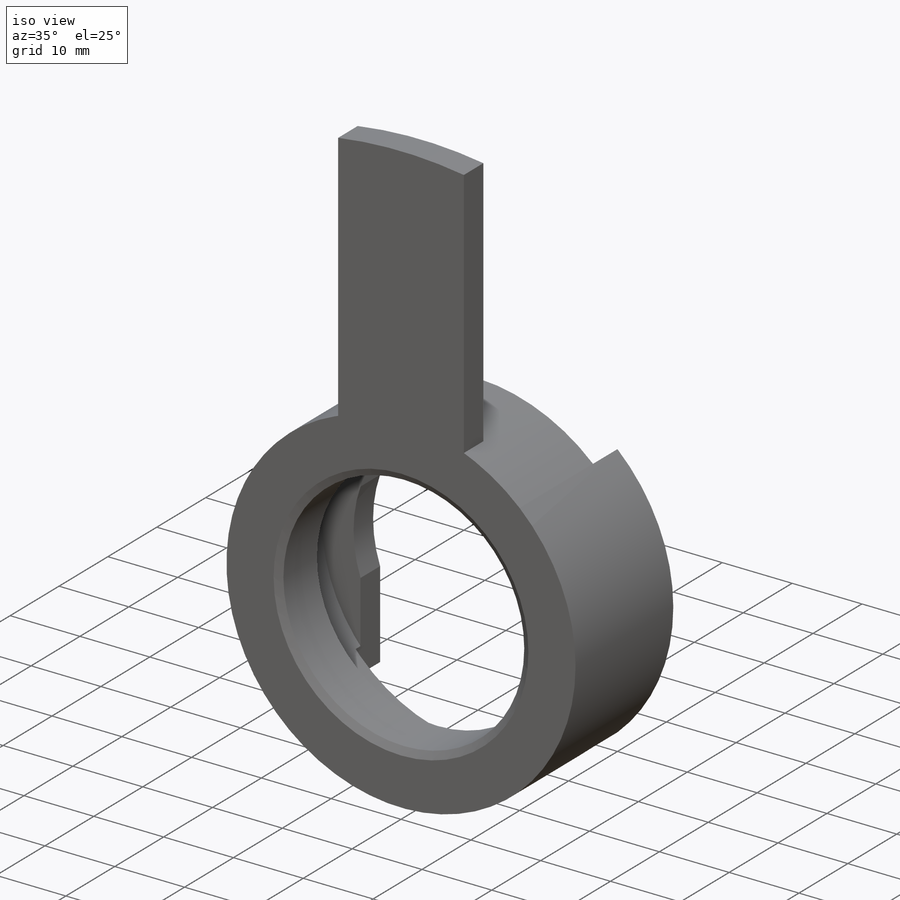
[diagram: iso view]
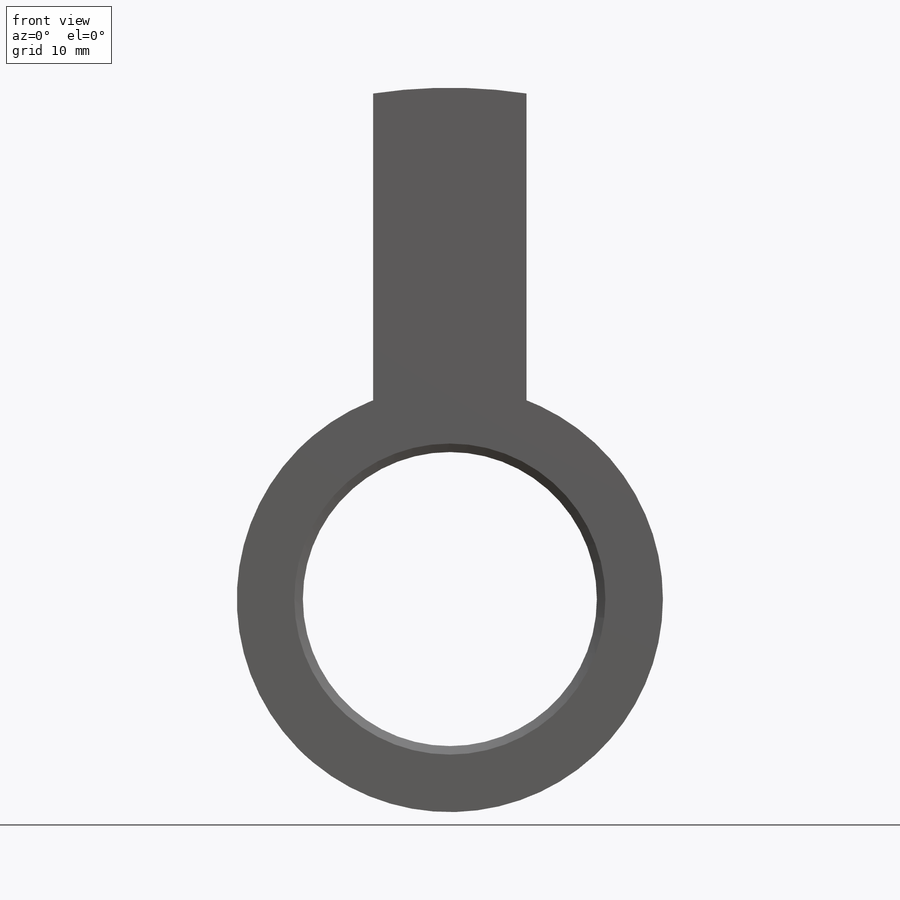
[diagram: front view]
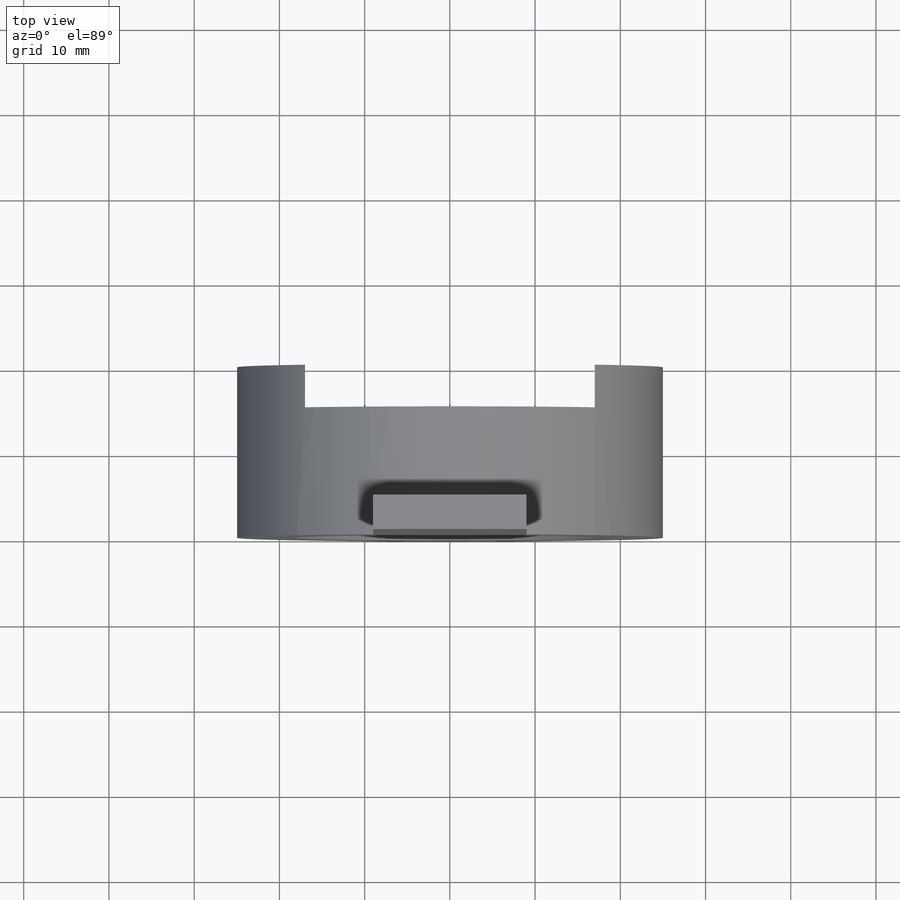
[diagram: top view]
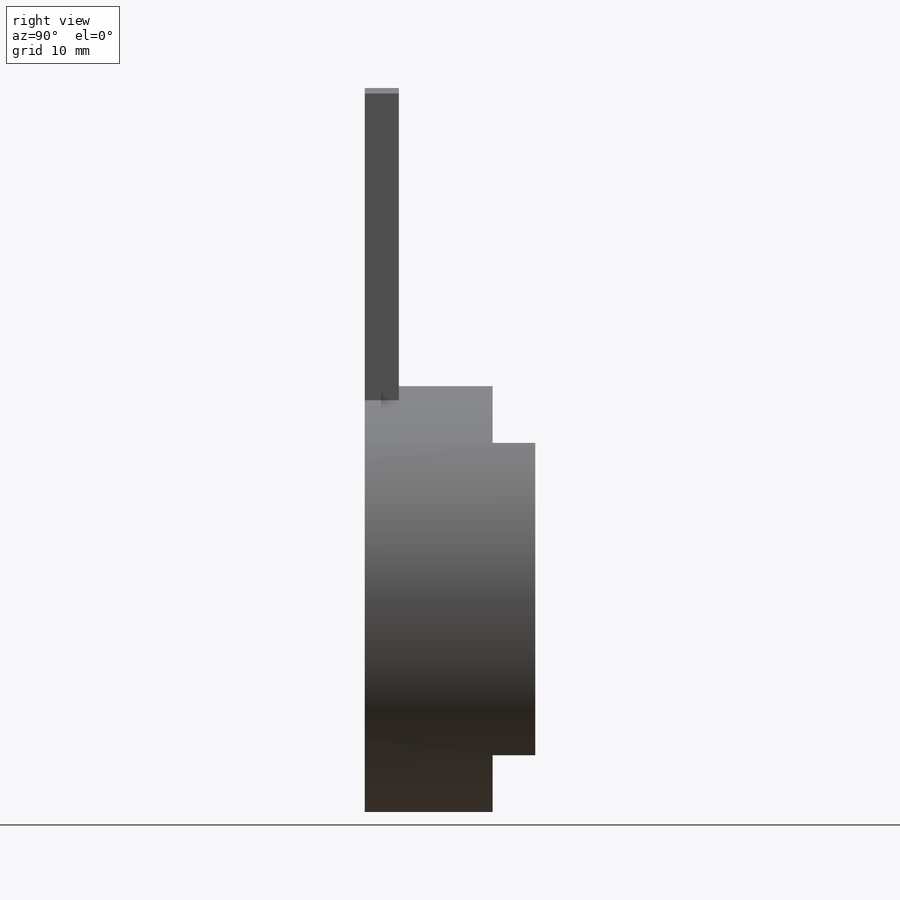
[diagram: right view]
SOLIDWORKS PART (.sldprt)
format: sldprt  version: not decoded by parser v0  size: 197,120 bytes
history: native  units: mm
features: plane x3, sketch x3, cut_extrude x2, material x1, revolve x1, thread x1, chamfer x1 (+14 scaffold rows collapsed)
feature tree (26):
  scaffold x14  (default folders/planes/origin — collapsed)
  material  "Материал <не указан>"
  plane  "Спереди"
  plane  "Сверху"
  plane  "Справа"
  sketch  "Эскиз1"  dims[c1.D1=36.0mm c1.D2=45.0mm c1.D3=50.0mm c1.D4=34.5mm c1.D5=120.0mm c1.D6=4.0mm c1.D7=12.0mm c1.D8=8.0mm c1.D9=4.0mm c2.D7=20.0mm]
  revolve  "Повернуть1"  [1 undecoded]
  thread  "Условное изображение резьбы1"  Diameter=36mm  [1 undecoded]
  chamfer  "Фаска1"  Distance=1mm Angle=30deg
  sketch  "Эскиз2"  dims[D1=45.0mm D2=34.0mm]
  cut_extrude  "Вырез-Вытянуть1"  Depth=5mm
  sketch  "Эскиз3"  dims[D1=18.0mm]
  cut_extrude  "Вырез-Вытянуть2"  Depth=5mm
decode coverage: 7 of 8 modeling features carry decoded parameters
note: 2 parameter values undecoded
note: suppression state not decoded; provenance and decode notes live in map.json
